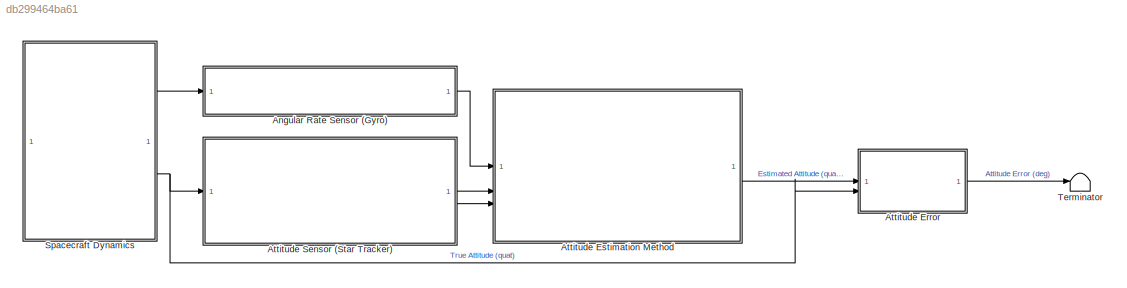
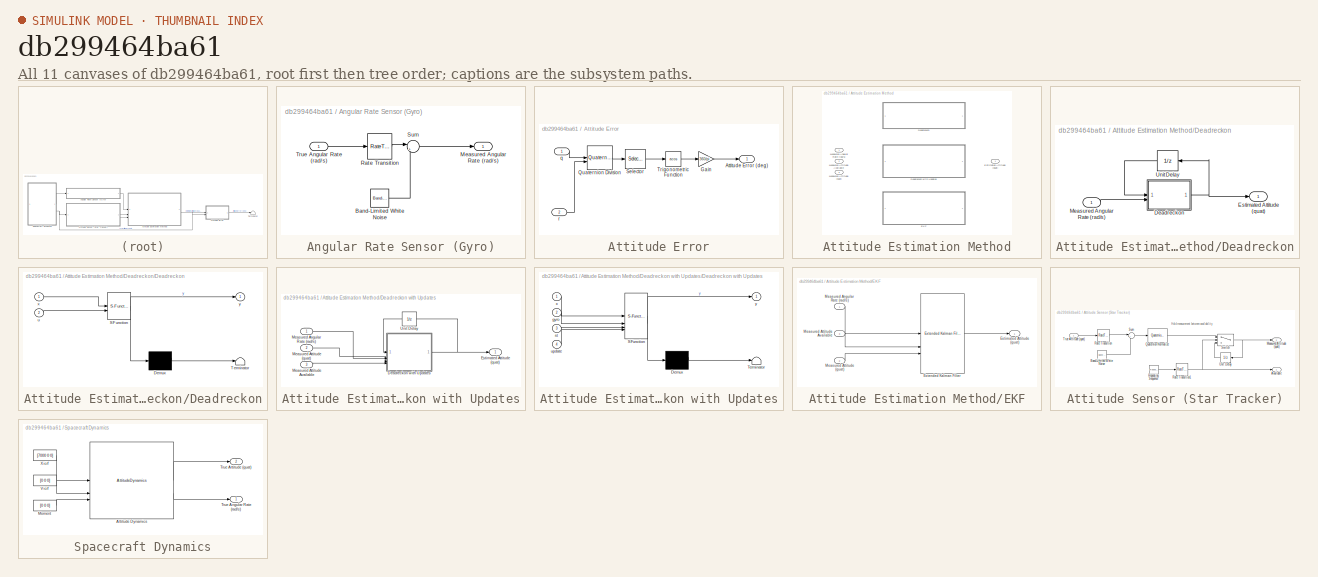
[diagram: thumbnail index - all 11 canvases of the model, root first then tree order]
MODEL slx_db299464ba61
KIND model
CONFIG AbsTol = auto
CONFIG EnableMultiTasking = off
CONFIG FixedStep = auto
CONFIG MaxStep = auto
CONFIG MinStep = auto
CONFIG RelTol = 1e-3
CONFIG SampleTimeConstraint = Unconstrained
CONFIG SolverName = VariableStepAuto
CONFIG StartTime = 0.0
CONFIG StopTime = tstop
BLOCK [SubSystem] Angular Rate Sensor (Gyro)
BLOCK [Reference] Angular Rate Sensor (Gyro)/Band-Limited White Noise  REF=simulink/Sources/Band-Limited
White Noise
  SourceBlock = simulink/Sources/Band-Limited\nWhite Noise
  SourceType = Band-Limited White Noise.
BLOCK [Outport] Angular Rate Sensor (Gyro)/Measured Angular Rate (rad//s)
BLOCK [RateTransition] Angular Rate Sensor (Gyro)/Rate Transition
  OutPortSampleTime = dt
BLOCK [Sum] Angular Rate Sensor (Gyro)/Sum
  Inputs = |++
BLOCK [Inport] Angular Rate Sensor (Gyro)/True Angular Rate (rad//s)
BLOCK [SubSystem] Attitude Error
BLOCK [Outport] Attitude Error/Attitude Error (deg)
BLOCK [Gain] Attitude Error/Gain
  Gain = 360/pi
BLOCK [Reference] Attitude Error/Quaternion Division  REF=aerolibutil/Quaternion
Division
  SourceBlock = aerolibutil/Quaternion\nDivision
  SourceType = Quaternion Division
BLOCK [Selector] Attitude Error/Selector
  IndexOptions = Index vector (dialog)
  Indices = 1
  InputPortWidth = 4
  OutputSizes = 1
BLOCK [Trigonometry] Attitude Error/Trigonometric Function
  Operator = acos
BLOCK [Inport] Attitude Error/q
BLOCK [Inport] Attitude Error/r
  Port = 2
BLOCK [SubSystem] Attitude Estimation Method
  Variant = on
BLOCK [SubSystem] Attitude Estimation Method/Deadreckon
  VariantControl = ad_method == 1
BLOCK [SubSystem] Attitude Estimation Method/Deadreckon with Updates
  VariantControl = ad_method == 2
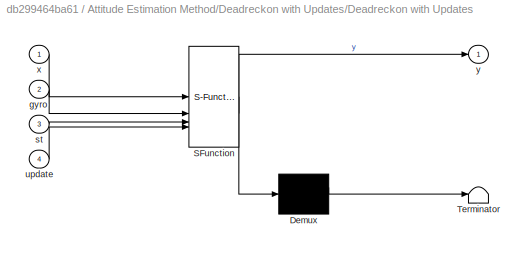
BLOCK [SubSystem] Attitude Estimation Method/Deadreckon with Updates/Deadreckon with Updates
  ErrorFcn = Stateflow.Translate.translate
  PermitHierarchicalResolution = ExplicitOnly
  SFBlockType = MATLAB Function
  TreatAsAtomicUnit = on
BLOCK [Demux] Attitude Estimation Method/Deadreckon with Updates/Deadreckon with Updates/ Demux 
  Outputs = 1
BLOCK [S-Function] Attitude Estimation Method/Deadreckon with Updates/Deadreckon with Updates/ SFunction 
  EnableBusSupport = off
  FunctionName = sf_sfun
  PortCounts = [4 2]
  SFcnIsStateOwnerBlock = off
  SFunctionDeploymentMode = off
  Tag = Stateflow S-Function 1
BLOCK [Terminator] Attitude Estimation Method/Deadreckon with Updates/Deadreckon with Updates/ Terminator 
BLOCK [Inport] Attitude Estimation Method/Deadreckon with Updates/Deadreckon with Updates/gyro
  Port = 2
BLOCK [Inport] Attitude Estimation Method/Deadreckon with Updates/Deadreckon with Updates/st
  Port = 3
BLOCK [Inport] Attitude Estimation Method/Deadreckon with Updates/Deadreckon with Updates/update
  Port = 4
BLOCK [Inport] Attitude Estimation Method/Deadreckon with Updates/Deadreckon with Updates/x
BLOCK [Outport] Attitude Estimation Method/Deadreckon with Updates/Deadreckon with Updates/y
BLOCK [Outport] Attitude Estimation Method/Deadreckon with Updates/Estimated Attitude (quat)
BLOCK [Inport] Attitude Estimation Method/Deadreckon with Updates/Measured Angular Rate (rad//s)
BLOCK [Inport] Attitude Estimation Method/Deadreckon with Updates/Measured Attitude (quat)
  Port = 2
BLOCK [Inport] Attitude Estimation Method/Deadreckon with Updates/Measured Attitude Available
  Port = 3
BLOCK [UnitDelay] Attitude Estimation Method/Deadreckon with Updates/Unit Delay
  HasFrameUpgradeWarning = on
  InitialCondition = [1 0 0 0]'
  NameLocation = top
  SampleTime = -1
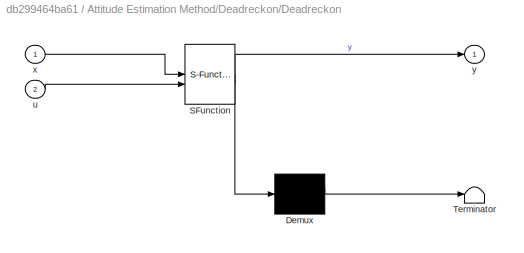
BLOCK [SubSystem] Attitude Estimation Method/Deadreckon/Deadreckon
  ErrorFcn = Stateflow.Translate.translate
  PermitHierarchicalResolution = ExplicitOnly
  SFBlockType = MATLAB Function
  TreatAsAtomicUnit = on
BLOCK [Demux] Attitude Estimation Method/Deadreckon/Deadreckon/ Demux 
  Outputs = 1
BLOCK [S-Function] Attitude Estimation Method/Deadreckon/Deadreckon/ SFunction 
  EnableBusSupport = off
  FunctionName = sf_sfun
  PortCounts = [2 2]
  SFcnIsStateOwnerBlock = off
  SFunctionDeploymentMode = off
  Tag = Stateflow S-Function 2
BLOCK [Terminator] Attitude Estimation Method/Deadreckon/Deadreckon/ Terminator 
BLOCK [Inport] Attitude Estimation Method/Deadreckon/Deadreckon/u
  Port = 2
BLOCK [Inport] Attitude Estimation Method/Deadreckon/Deadreckon/x
BLOCK [Outport] Attitude Estimation Method/Deadreckon/Deadreckon/y
BLOCK [Outport] Attitude Estimation Method/Deadreckon/Estimated Attitude (quat)
BLOCK [Inport] Attitude Estimation Method/Deadreckon/Measured Angular Rate (rad//s)
BLOCK [UnitDelay] Attitude Estimation Method/Deadreckon/Unit Delay
  HasFrameUpgradeWarning = on
  InitialCondition = [1 0 0 0]'
  NameLocation = top
  SampleTime = -1
BLOCK [SubSystem] Attitude Estimation Method/EKF
  VariantControl = ad_method == 3
BLOCK [Outport] Attitude Estimation Method/EKF/Estimated Attitude (quat)
BLOCK [Reference] Attitude Estimation Method/EKF/Extended Kalman Filter  REF=sharedTrackingLibrary/Extended Kalman Filter
  LibrarySourceBlock = cstblocks/State Estimation/Extended Kalman Filter
  SourceBlock = sharedTrackingLibrary/Extended Kalman Filter
  SourceType = Extended Kalman Filter
BLOCK [Inport] Attitude Estimation Method/EKF/Measured Angular Rate (rad//s)
BLOCK [Inport] Attitude Estimation Method/EKF/Measured Attitude (quat)
  Port = 2
  PortDimensions = 4
BLOCK [Inport] Attitude Estimation Method/EKF/Measured Attitude Available
  Port = 3
BLOCK [Outport] Attitude Estimation Method/Estimated Attitude (quat)
BLOCK [Inport] Attitude Estimation Method/Measured Angular Rate (rad//s)
BLOCK [Inport] Attitude Estimation Method/Measured Attitude (quat)
  Port = 3
BLOCK [Inport] Attitude Estimation Method/Measured Attitude Available
  Port = 2
BLOCK [SubSystem] Attitude Sensor (Star Tracker)
BLOCK [Outport] Attitude Sensor (Star Tracker)/Available
BLOCK [Reference] Attitude Sensor (Star Tracker)/Band-Limited White Noise  REF=simulink/Sources/Band-Limited
White Noise
  SourceBlock = simulink/Sources/Band-Limited\nWhite Noise
  SourceType = Band-Limited White Noise.
BLOCK [Outport] Attitude Sensor (Star Tracker)/Measured Attitude (quat)
  Port = 2
BLOCK [Reference] Attitude Sensor (Star Tracker)/Quaternion Normalize  REF=sharedutil/Quaternion
Normalize
  LibrarySourceBlock = aerolibutil/Quaternion\nNormalize
  SourceBlock = sharedutil/Quaternion\nNormalize
  SourceType = Quaternion Normalize
BLOCK [RateTransition] Attitude Sensor (Star Tracker)/Rate Transition
  OutPortSampleTime = dt
BLOCK [RateTransition] Attitude Sensor (Star Tracker)/Rate Transition1
  OutPortSampleTime = dt
BLOCK [Reference] Attitude Sensor (Star Tracker)/Repeating Sequence  REF=simulink/Sources/Repeating
Sequence
  SourceBlock = simulink/Sources/Repeating\nSequence
  SourceType = Repeating table
BLOCK [Sum] Attitude Sensor (Star Tracker)/Sum
  Inputs = |++
BLOCK [Switch] Attitude Sensor (Star Tracker)/Switch
  Criteria = u2 > Threshold
  InputSameDT = off
  SaturateOnIntegerOverflow = off
  Threshold = 0.5
BLOCK [Inport] Attitude Sensor (Star Tracker)/True Attitude (quat)
BLOCK [UnitDelay] Attitude Sensor (Star Tracker)/Unit Delay
  HasFrameUpgradeWarning = on
  InitialCondition = [1 0 0 0]
  NameLocation = top
  SampleTime = -1
BLOCK [SubSystem] Spacecraft Dynamics
BLOCK [AttitudeDynamics] Spacecraft Dynamics/Attitude Dynamics
  angleUnits = Radians
  attitude = initial_attitude_quat
  attitudeFrame = LVLH
  attitudeRate = initial_rate_radps
  dateOut = off
  inertia = inertia_tensor_kg_m2
  stateFrame = Fixed-frame
  units = Metric (km/s)
BLOCK [Constant] Spacecraft Dynamics/Moment
  Value = [0 0 0]
BLOCK [Outport] Spacecraft Dynamics/True Angular Rate (rad//s)
BLOCK [Outport] Spacecraft Dynamics/True Attitude (quat)
  Port = 2
BLOCK [Constant] Spacecraft Dynamics/Vicrf
  Value = [0 0 0]
BLOCK [Constant] Spacecraft Dynamics/Xicrf
  Value = [7000 0 0]
BLOCK [Terminator] Terminator
ANNOTATION Attitude Sensor (Star Tracker): Hold measurement between availability
LINE Angular Rate Sensor (Gyro)/Band-Limited White Noise:1 -> Angular Rate Sensor (Gyro)/Sum:2
LINE Angular Rate Sensor (Gyro)/Rate Transition:1 -> Angular Rate Sensor (Gyro)/Sum:1
LINE Angular Rate Sensor (Gyro)/Sum:1 -> Angular Rate Sensor (Gyro)/Measured Angular Rate (rad//s):1
LINE Angular Rate Sensor (Gyro)/True Angular Rate (rad//s):1 -> Angular Rate Sensor (Gyro)/Rate Transition:1
LINE Angular Rate Sensor (Gyro):1 -> Attitude Estimation Method:1
LINE Attitude Error/Gain:1 -> Attitude Error/Attitude Error (deg):1
LINE Attitude Error/Quaternion Division:1 -> Attitude Error/Selector:1
LINE Attitude Error/Selector:1 -> Attitude Error/Trigonometric Function:1
LINE Attitude Error/Trigonometric Function:1 -> Attitude Error/Gain:1
LINE Attitude Error/q:1 -> Attitude Error/Quaternion Division:1
LINE Attitude Error/r:1 -> Attitude Error/Quaternion Division:2
LINE Attitude Error:1 -> Terminator:1
NET Attitude Estimation Method/Deadreckon with Updates/Deadreckon with Updates:1 -> Attitude Estimation Method/Deadreckon with Updates/Estimated Attitude (quat):1, Attitude Estimation Method/Deadreckon with Updates/Unit Delay:1
LINE Attitude Estimation Method/Deadreckon with Updates/Measured Angular Rate (rad//s):1 -> Attitude Estimation Method/Deadreckon with Updates/Deadreckon with Updates:2
LINE Attitude Estimation Method/Deadreckon with Updates/Measured Attitude (quat):1 -> Attitude Estimation Method/Deadreckon with Updates/Deadreckon with Updates:3
LINE Attitude Estimation Method/Deadreckon with Updates/Measured Attitude Available:1 -> Attitude Estimation Method/Deadreckon with Updates/Deadreckon with Updates:4
LINE Attitude Estimation Method/Deadreckon with Updates/Unit Delay:1 -> Attitude Estimation Method/Deadreckon with Updates/Deadreckon with Updates:1
NET Attitude Estimation Method/Deadreckon/Deadreckon:1 -> Attitude Estimation Method/Deadreckon/Estimated Attitude (quat):1, Attitude Estimation Method/Deadreckon/Unit Delay:1
LINE Attitude Estimation Method/Deadreckon/Measured Angular Rate (rad//s):1 -> Attitude Estimation Method/Deadreckon/Deadreckon:2
LINE Attitude Estimation Method/Deadreckon/Unit Delay:1 -> Attitude Estimation Method/Deadreckon/Deadreckon:1
LINE Attitude Estimation Method/EKF/Extended Kalman Filter:1 -> Attitude Estimation Method/EKF/Estimated Attitude (quat):1
LINE Attitude Estimation Method/EKF/Measured Angular Rate (rad//s):1 -> Attitude Estimation Method/EKF/Extended Kalman Filter:1
LINE Attitude Estimation Method/EKF/Measured Attitude (quat):1 -> Attitude Estimation Method/EKF/Extended Kalman Filter:3
LINE Attitude Estimation Method/EKF/Measured Attitude Available:1 -> Attitude Estimation Method/EKF/Extended Kalman Filter:2
LINE Attitude Estimation Method:1 -> Attitude Error:1
LINE Attitude Sensor (Star Tracker)/Band-Limited White Noise:1 -> Attitude Sensor (Star Tracker)/Sum:2
LINE Attitude Sensor (Star Tracker)/Quaternion Normalize:1 -> Attitude Sensor (Star Tracker)/Switch:1
NET Attitude Sensor (Star Tracker)/Rate Transition1:1 -> Attitude Sensor (Star Tracker)/Available:1, Attitude Sensor (Star Tracker)/Switch:2
LINE Attitude Sensor (Star Tracker)/Rate Transition:1 -> Attitude Sensor (Star Tracker)/Sum:1
LINE Attitude Sensor (Star Tracker)/Repeating Sequence:1 -> Attitude Sensor (Star Tracker)/Rate Transition1:1
LINE Attitude Sensor (Star Tracker)/Sum:1 -> Attitude Sensor (Star Tracker)/Quaternion Normalize:1
NET Attitude Sensor (Star Tracker)/Switch:1 -> Attitude Sensor (Star Tracker)/Measured Attitude (quat):1, Attitude Sensor (Star Tracker)/Unit Delay:1
LINE Attitude Sensor (Star Tracker)/True Attitude (quat):1 -> Attitude Sensor (Star Tracker)/Rate Transition:1
LINE Attitude Sensor (Star Tracker)/Unit Delay:1 -> Attitude Sensor (Star Tracker)/Switch:3
LINE Attitude Sensor (Star Tracker):1 -> Attitude Estimation Method:2
LINE Attitude Sensor (Star Tracker):2 -> Attitude Estimation Method:3
LINE Spacecraft Dynamics/Attitude Dynamics:1 -> Spacecraft Dynamics/True Attitude (quat):1
LINE Spacecraft Dynamics/Attitude Dynamics:2 -> Spacecraft Dynamics/True Angular Rate (rad//s):1
LINE Spacecraft Dynamics/Moment:1 -> Spacecraft Dynamics/Attitude Dynamics:3
LINE Spacecraft Dynamics/Vicrf:1 -> Spacecraft Dynamics/Attitude Dynamics:2
LINE Spacecraft Dynamics/Xicrf:1 -> Spacecraft Dynamics/Attitude Dynamics:1
LINE Spacecraft Dynamics:1 -> Angular Rate Sensor (Gyro):1
NET Spacecraft Dynamics:2 -> Attitude Error:2, Attitude Sensor (Star Tracker):1
note: NET lines group one-source signal fan-out (src -> all destinations, sorted); 1:1 wires keep LINE
CHART Attitude Estimation Method/Deadreckon with Updates/Deadreckon with Updates states=1 transitions=1
  STATE_LABEL 'eML_blk_kernel()'
  STATE_LABEL "SCRIPT:\nfunction y = fcn(x, gyro, st, update)\n\nrotMat = 0.01/2*[-x(2), -x(3), -x(4);\n                  x(1), -x(4),  x(3);\n                  x(4),  x(1), -x(2);\n                 -x(3),  x(2),  x(1)];\n\nx = x + rotMat*[gyro(1), gyro(2), gyro(3)]';\n\ny = x./norm(x);\n\nif update\n    y = st;\nend\n"
CHART Attitude Estimation Method/Deadreckon/Deadreckon states=1 transitions=1
  STATE_LABEL 'eML_blk_kernel()'
  STATE_LABEL "SCRIPT:\nfunction y = fcn(x, u)\n\nrotMat = 0.01/2*[-x(2), -x(3), -x(4);\n                  x(1), -x(4),  x(3);\n                  x(4),  x(1), -x(2);\n                 -x(3),  x(2),  x(1)];\n\nx = x + rotMat*[u(1), u(2), u(3)]';\n\ny = x./norm(x);\n"
CHART  states=0 transitions=0
CHART  states=0 transitions=0
